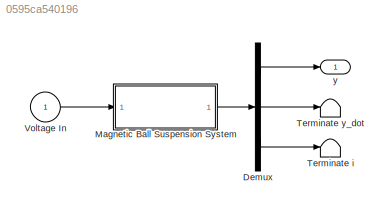
MODEL slx_0595ca540196
KIND model
CONFIG AbsTol = auto
CONFIG EnableMultiTasking = off
CONFIG FixedStep = auto
CONFIG MaxStep = auto
CONFIG MinStep = auto
CONFIG RelTol = 1e-3
CONFIG SampleTimeConstraint = Unconstrained
CONFIG Solver = VariableStepAuto
CONFIG SolverName = VariableStepAuto
CONFIG StartTime = 0.0
CONFIG StopTime = 2
BLOCK [Demux] Demux
  DisplayOption = bar
  Outputs = 3
  Ports = [1, 3]
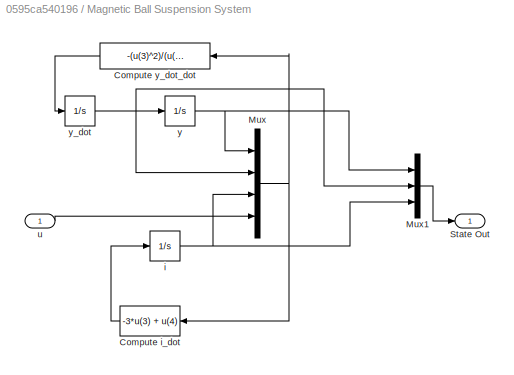
BLOCK [SubSystem] Magnetic Ball Suspension System
  Ports = [1, 1]
  RequestExecContextInheritance = off
BLOCK [Fcn] Magnetic Ball Suspension System/Compute i_dot
  Expr = -3*u(3) + u(4)
BLOCK [Fcn] Magnetic Ball Suspension System/Compute y_dot_dot
  Expr = -(u(3)^2)/(u(1)^2) + 9.8
BLOCK [Mux] Magnetic Ball Suspension System/Mux
  DisplayOption = bar
  Ports = [4, 1]
BLOCK [Mux] Magnetic Ball Suspension System/Mux1
  DisplayOption = bar
  Inputs = 3
  Ports = [3, 1]
BLOCK [Outport] Magnetic Ball Suspension System/State Out
  IconDisplay = Port number
BLOCK [Integrator] Magnetic Ball Suspension System/i
  Ports = [1, 1]
BLOCK [Inport] Magnetic Ball Suspension System/u
  IconDisplay = Port number
BLOCK [Integrator] Magnetic Ball Suspension System/y
  Ports = [1, 1]
BLOCK [Integrator] Magnetic Ball Suspension System/y_dot
  Ports = [1, 1]
BLOCK [Terminator] Terminate i
BLOCK [Terminator] Terminate y_dot
BLOCK [Inport] Voltage In
  IconDisplay = Port number
BLOCK [Outport] y
  IconDisplay = Port number
LINE Demux:1 -> y:1
LINE Demux:2 -> Terminate y_dot:1
LINE Demux:3 -> Terminate i:1
LINE Magnetic Ball Suspension System/Compute i_dot:1 -> Magnetic Ball Suspension System/i:1
LINE Magnetic Ball Suspension System/Compute y_dot_dot:1 -> Magnetic Ball Suspension System/y_dot:1
LINE Magnetic Ball Suspension System/Mux1:1 -> Magnetic Ball Suspension System/State Out:1
NET Magnetic Ball Suspension System/Mux:1 -> Magnetic Ball Suspension System/Compute i_dot:1, Magnetic Ball Suspension System/Compute y_dot_dot:1
NET Magnetic Ball Suspension System/i:1 -> Magnetic Ball Suspension System/Mux1:3, Magnetic Ball Suspension System/Mux:3
LINE Magnetic Ball Suspension System/u:1 -> Magnetic Ball Suspension System/Mux:4
NET Magnetic Ball Suspension System/y:1 -> Magnetic Ball Suspension System/Mux1:1, Magnetic Ball Suspension System/Mux:1
NET Magnetic Ball Suspension System/y_dot:1 -> Magnetic Ball Suspension System/Mux1:2, Magnetic Ball Suspension System/Mux:2, Magnetic Ball Suspension System/y:1
LINE Magnetic Ball Suspension System:1 -> Demux:1
LINE Voltage In:1 -> Magnetic Ball Suspension System:1
note: NET lines group one-source signal fan-out (src -> all destinations, sorted); 1:1 wires keep LINE
